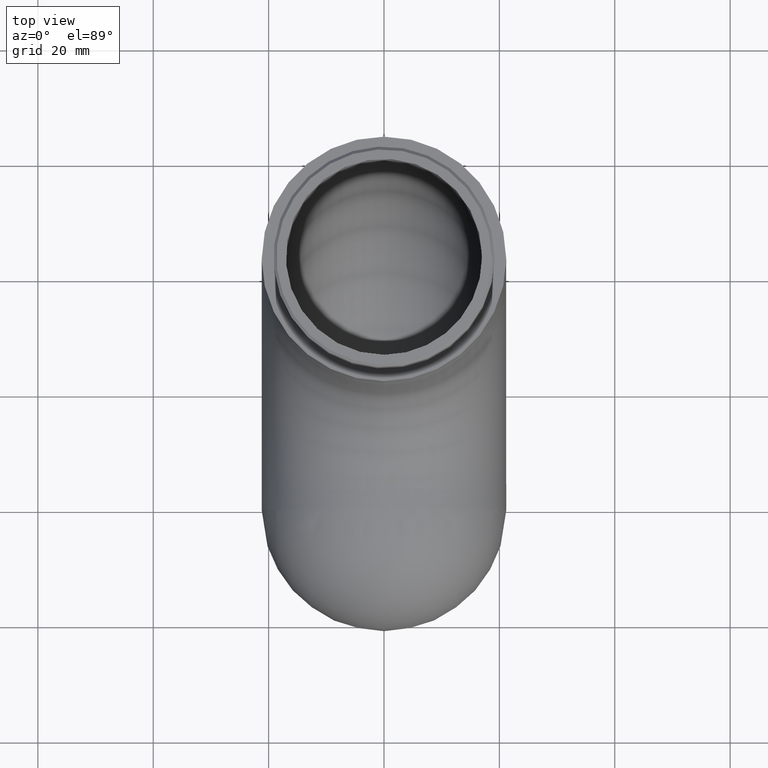
[diagram: clean part render]
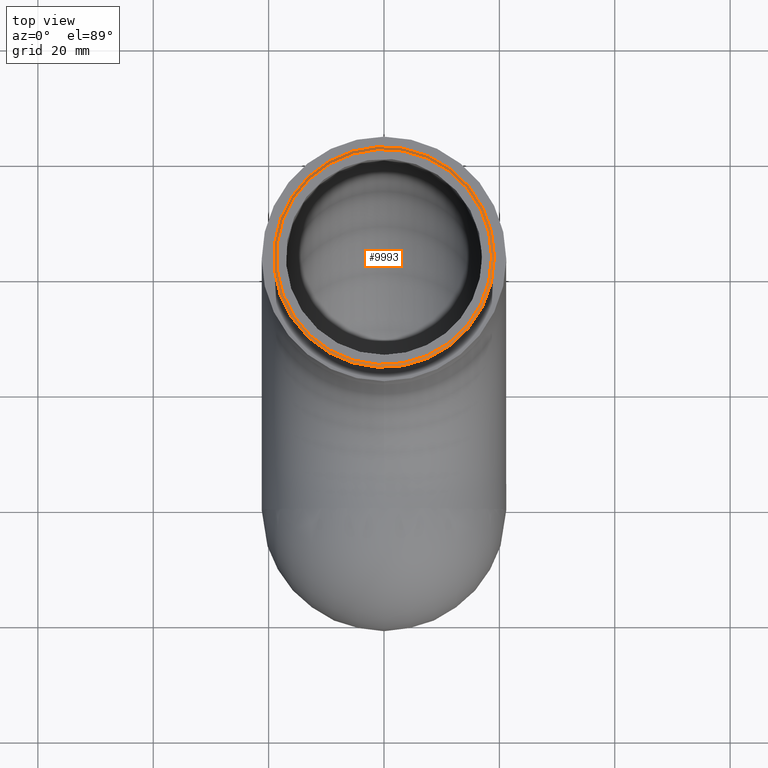
[diagram: same view with one face highlighted and labeled with its STEP entity id]
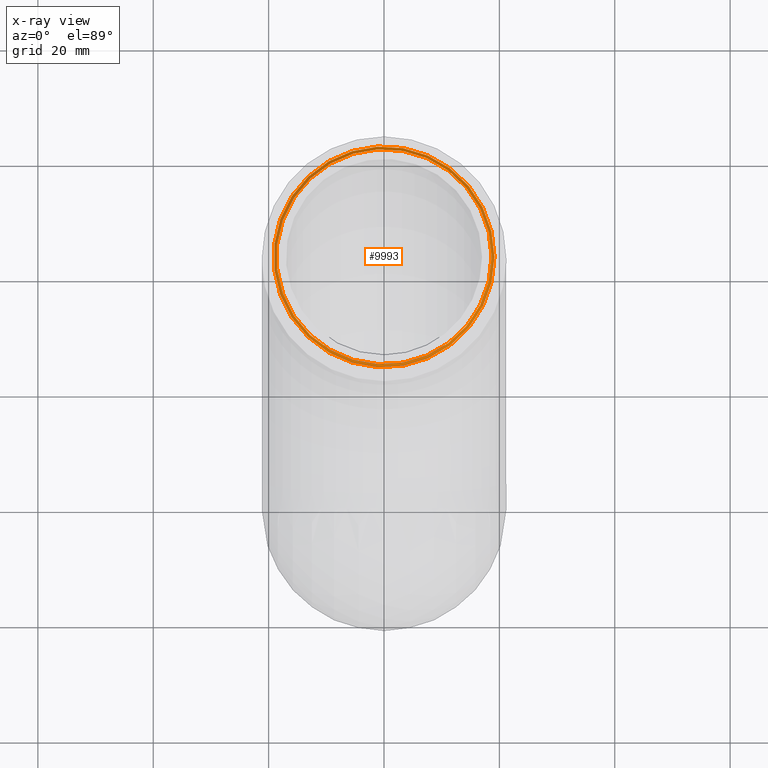
[diagram: x-ray of the same camera — body ghosted, the highlighted face saturated]
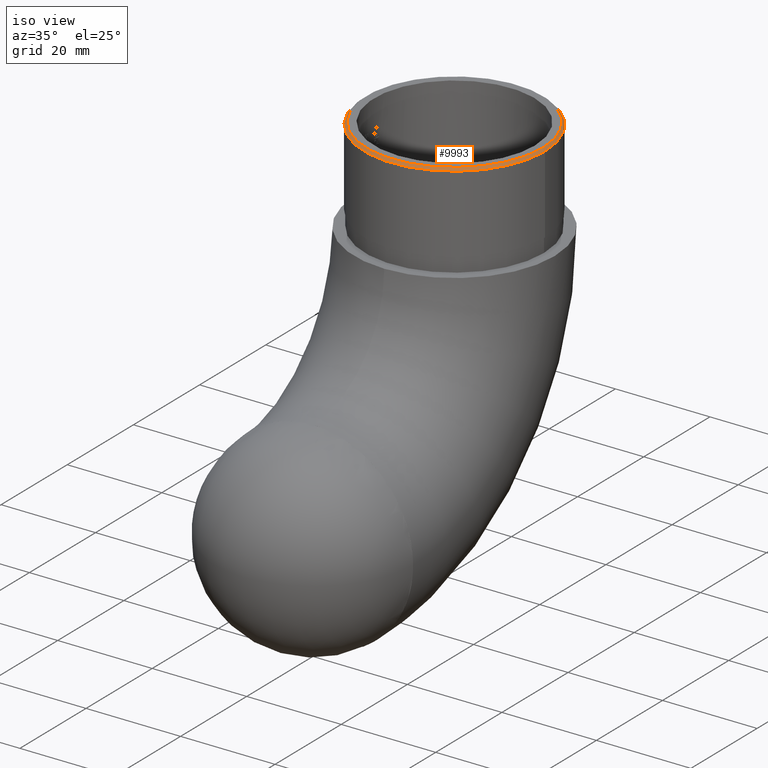
[diagram: same view with one face highlighted and labeled with its STEP entity id]
A machine part, top view. The second image highlights one B-rep face of the part: STEP entity #9993.
The next image is the same camera in x-ray: the body ghosted, the highlighted face saturated — about 0% of this face is hidden behind the body in this view.
A second angle (iso view) of the same face is appended — the face is thin or edge-on in the first view.
In plain terms, the highlighted conical surface has half-angle 45 deg.
Its self-contained STEP definition (entity closure, byte-faithful):
#607 = AXIS2_PLACEMENT_3D ( 'NONE', #7075, #7810, #674 ) ;
#674 = DIRECTION ( 'NONE',  ( 1.000000000000000000, 0.0000000000000000000, 0.0000000000000000000 ) ) ;
#738 = CIRCLE ( 'NONE', #607, 19.15000000000000200 ) ;
#2110 = ORIENTED_EDGE ( 'NONE', *, *, #5558, .F. ) ;
#2808 = EDGE_CURVE ( 'NONE', #4788, #4788, #3414, .T. ) ;
#3414 = CIRCLE ( 'NONE', #11767, 18.65000000000001300 ) ;
#3810 = VERTEX_POINT ( 'NONE', #8837 ) ;
#4744 = FACE_OUTER_BOUND ( 'NONE', #10968, .T. ) ;
#4788 = VERTEX_POINT ( 'NONE', #10784 ) ;
#4944 = ORIENTED_EDGE ( 'NONE', *, *, #2808, .F. ) ;
#5558 = EDGE_CURVE ( 'NONE', #3810, #3810, #738, .T. ) ;
#6416 = AXIS2_PLACEMENT_3D ( 'NONE', #7168, #9958, #9067 ) ;
#6840 = EDGE_LOOP ( 'NONE', ( #4944 ) ) ;
#6909 = FACE_BOUND ( 'NONE', #6840, .T. ) ;
#7065 = CONICAL_SURFACE ( 'NONE', #6416, 18.65000000000001300, 0.7853981633974447300 ) ;
#7075 = CARTESIAN_POINT ( 'NONE',  ( 0.0000000000000000000, 42.80000000000000400, 19.50000000000000700 ) ) ;
#7168 = CARTESIAN_POINT ( 'NONE',  ( 0.0000000000000000000, 42.80000000000000400, 20.00000000000000000 ) ) ;
#7410 = DIRECTION ( 'NONE',  ( 0.0000000000000000000, 0.0000000000000000000, 1.000000000000000000 ) ) ;
#7810 = DIRECTION ( 'NONE',  ( 0.0000000000000000000, 0.0000000000000000000, -1.000000000000000000 ) ) ;
#8315 = DIRECTION ( 'NONE',  ( 1.000000000000000000, 0.0000000000000000000, 0.0000000000000000000 ) ) ;
#8837 = CARTESIAN_POINT ( 'NONE',  ( 19.15000000000000200, 42.80000000000000400, 19.50000000000000700 ) ) ;
#9067 = DIRECTION ( 'NONE',  ( -1.000000000000000000, 0.0000000000000000000, 0.0000000000000000000 ) ) ;
#9958 = DIRECTION ( 'NONE',  ( 0.0000000000000000000, 0.0000000000000000000, -1.000000000000000000 ) ) ;
#9993 = ADVANCED_FACE ( 'NONE', ( #4744, #6909 ), #7065, .T. ) ;
#10784 = CARTESIAN_POINT ( 'NONE',  ( 18.65000000000001300, 42.80000000000000400, 20.00000000000000000 ) ) ;
#10953 = CARTESIAN_POINT ( 'NONE',  ( 0.0000000000000000000, 42.80000000000000400, 20.00000000000000000 ) ) ;
#10968 = EDGE_LOOP ( 'NONE', ( #2110 ) ) ;
#11767 = AXIS2_PLACEMENT_3D ( 'NONE', #10953, #7410, #8315 ) ;